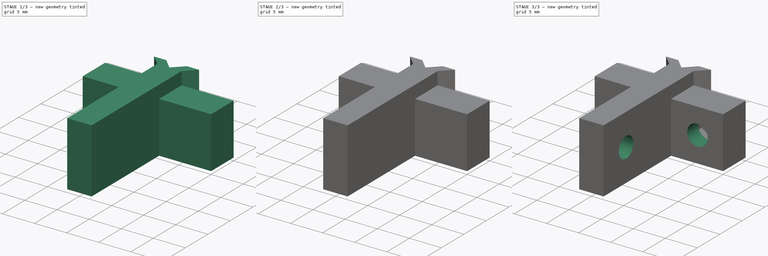
[diagram: build sequence overview — one tinted view per stage of 3, left to right]
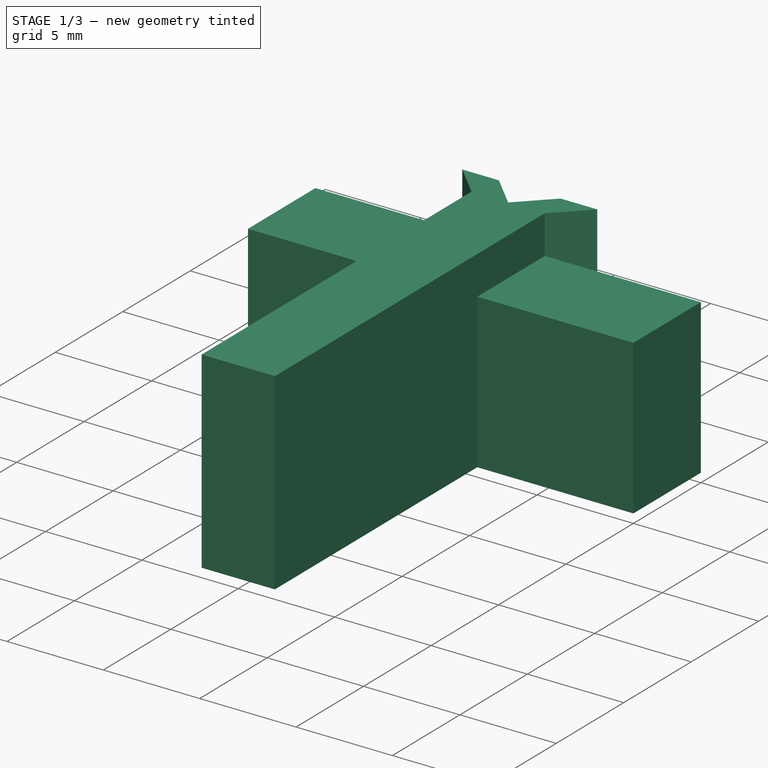
[diagram: stage 1 of 3 — iso view after this stage's code; geometry added in this stage tinted green]
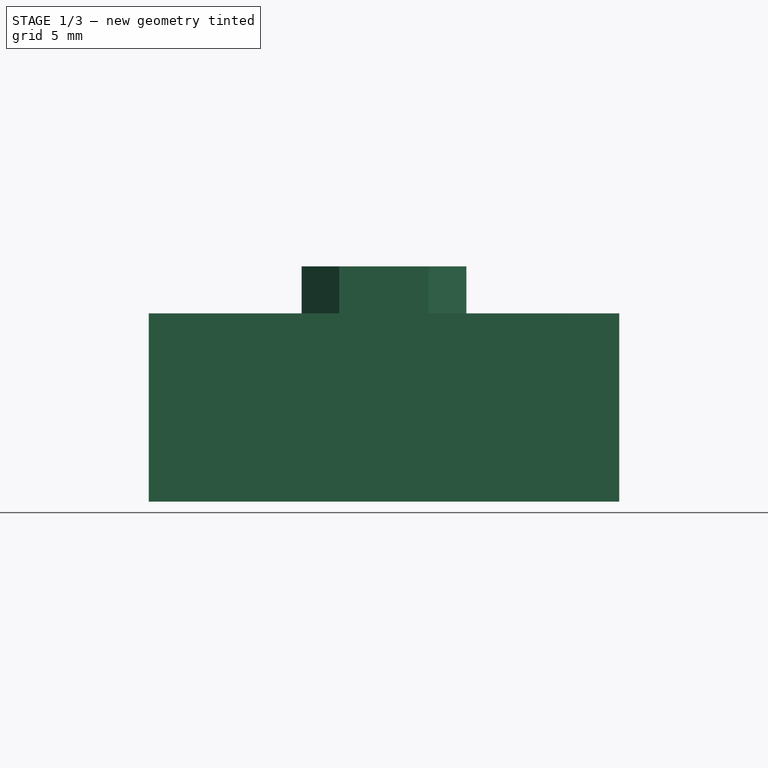
[diagram: stage 1 of 3 — front view after this stage's code; geometry added in this stage tinted green]
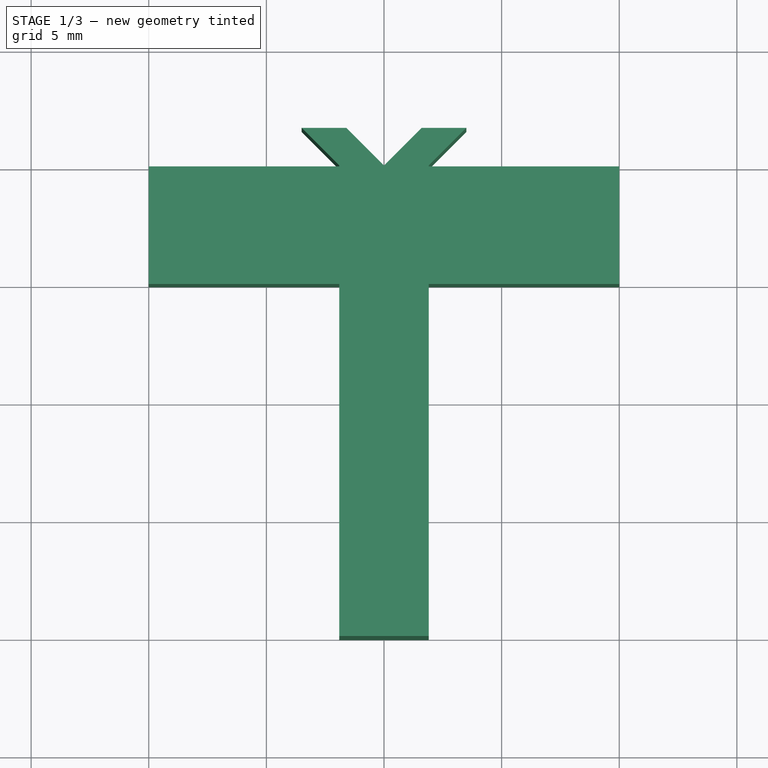
[diagram: stage 1 of 3 — top view after this stage's code; geometry added in this stage tinted green]
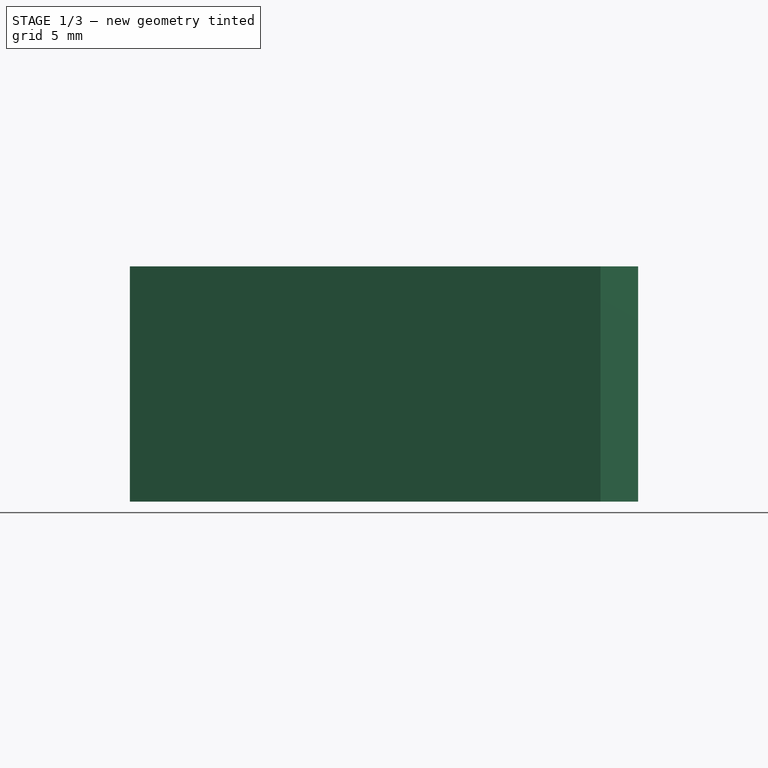
[diagram: stage 1 of 3 — right view after this stage's code; geometry added in this stage tinted green]
FCSTD DOCUMENT  (FreeCAD 0.18R15441 (Git))
Label: BackClip
License: All rights reserved
LicenseURL: http://en.wikipedia.org/wiki/All_rights_reserved
objects: Sketcher::SketchObject×5, PartDesign::Pocket×3, PartDesign::Pad×2, PartDesign::Body×1, App::Part×1
note: 16 computed .brp shape members not serialized (recipe doc carries the construction recipe); baked Part::Feature solids carry a one-line shape summary decoded from their .brp

FEATURE [Sketcher::SketchObject] Sketch001  label="BaseSketch"
  MapMode = 5
  Support = -> [XY_Plane001]
  sketch-geometry (9):
    g0: LineSegment StartX=-1.9 StartY=0 StartZ=0 EndX=-3.5 EndY=1.6 EndZ=0
    g1: LineSegment StartX=-3.5 StartY=1.6 StartZ=0 EndX=-1.6 EndY=1.6 EndZ=0
    g2: LineSegment StartX=-1.6 StartY=1.6 StartZ=0 EndX=0 EndY=2e-16 EndZ=0
    g3: LineSegment StartX=0 StartY=2e-16 StartZ=0 EndX=1.6 EndY=1.6 EndZ=0
    g4: LineSegment StartX=1.6 StartY=1.6 StartZ=0 EndX=3.5 EndY=1.6 EndZ=0
    g5: LineSegment StartX=3.5 StartY=1.6 StartZ=0 EndX=1.9 EndY=2e-16 EndZ=0
    g6: LineSegment StartX=-1.9 StartY=0 StartZ=0 EndX=-1.9 EndY=-20 EndZ=0
    g7: LineSegment StartX=-1.9 StartY=-20 StartZ=0 EndX=1.9 EndY=-20 EndZ=0
    g8: LineSegment StartX=1.9 StartY=-20 StartZ=0 EndX=1.9 EndY=0 EndZ=0
  constraints (24):
    c: PointOnObject(g0,g-1)
    c: Coincident(g1,g0)
    c: Horizontal(g1)
    c: Coincident(g2,g1)
    c: Coincident(g2,g-1)
    c: Coincident(g3,g2)
    c: Coincident(g4,g3)
    c: Horizontal(g4)
    c: Coincident(g5,g4)
    c: PointOnObject(g5,g-1)
    c: Coincident(g6,g0)
    c: Vertical(g6)
    c: Coincident(g7,g6)
    c: Coincident(g8,g7)
    c: Coincident(g8,g5)
    c: Vertical(g8)
    c: Symmetric(g6,g7,g-2)
    c: Parallel(g0,g2)
    c: Symmetric(g1,g3,g-2)
    c: Angle(g3,g2) = 1.5708
    c: Equal(g4,g1)
    c: DistanceY(g-1,g0) = 1.6
    c: Distance(g6) = 20
    c: Distance(g7) = 3.8
FEATURE [PartDesign::Pad] Pad  label="BasePad"
  Length = 10
  Length2 = 100
  Profile = -> Sketch001
  Type = 0
FEATURE [Sketcher::SketchObject] Sketch  label="LipsSketch"
  MapMode = 5
  Placement = pos=(0,0,0) rot=(1,0,0;1.5708rad)
  Support = -> [XZ_Plane001]
  sketch-geometry (4):
    g0: LineSegment StartX=-10 StartY=0 StartZ=0 EndX=10 EndY=0 EndZ=0
    g1: LineSegment StartX=10 StartY=0 StartZ=0 EndX=10 EndY=8 EndZ=0
    g2: LineSegment StartX=10 StartY=8 StartZ=0 EndX=-10 EndY=8 EndZ=0
    g3: LineSegment StartX=-10 StartY=8 StartZ=0 EndX=-10 EndY=0 EndZ=0
  constraints (11):
    c: Coincident(g0,g1)
    c: Coincident(g1,g2)
    c: Coincident(g2,g3)
    c: Coincident(g3,g0)
    c: Horizontal(g2)
    c: Vertical(g1)
    c: Vertical(g3)
    c: PointOnObject(g0,g-1)
    c: Symmetric(g0,g0,g-2)
    c: Distance(g0) = 20
    c: Distance(g3) = 8
FEATURE [PartDesign::Pad] Pad001  label="LipsPad"
  BaseFeature = -> Pad
  Length = 5
  Length2 = 100
  Profile = -> Sketch
  Type = 0
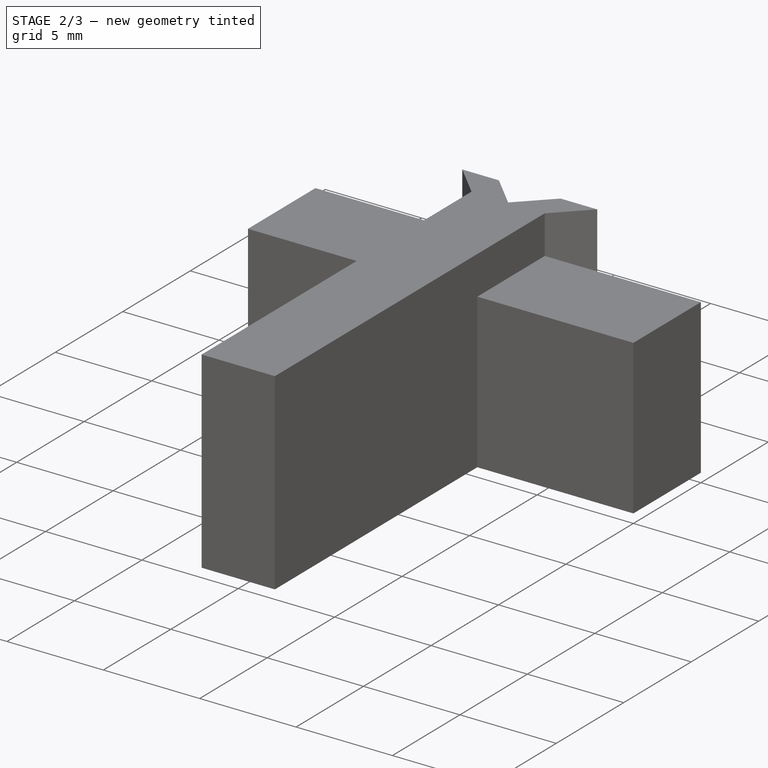
[diagram: stage 2 of 3 — iso view after this stage's code; geometry added in this stage tinted green]
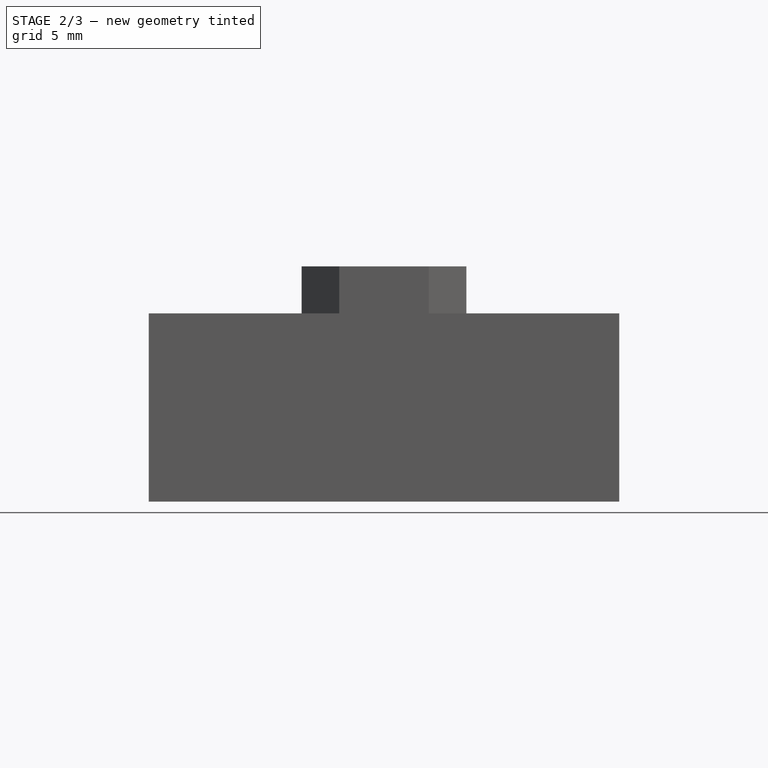
[diagram: stage 2 of 3 — front view after this stage's code; geometry added in this stage tinted green]
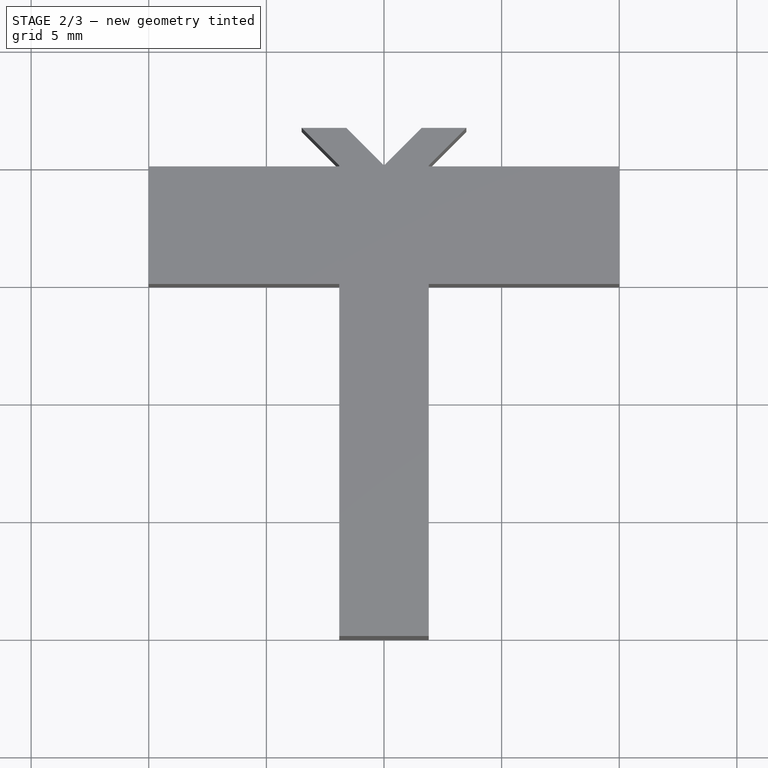
[diagram: stage 2 of 3 — top view after this stage's code; geometry added in this stage tinted green]
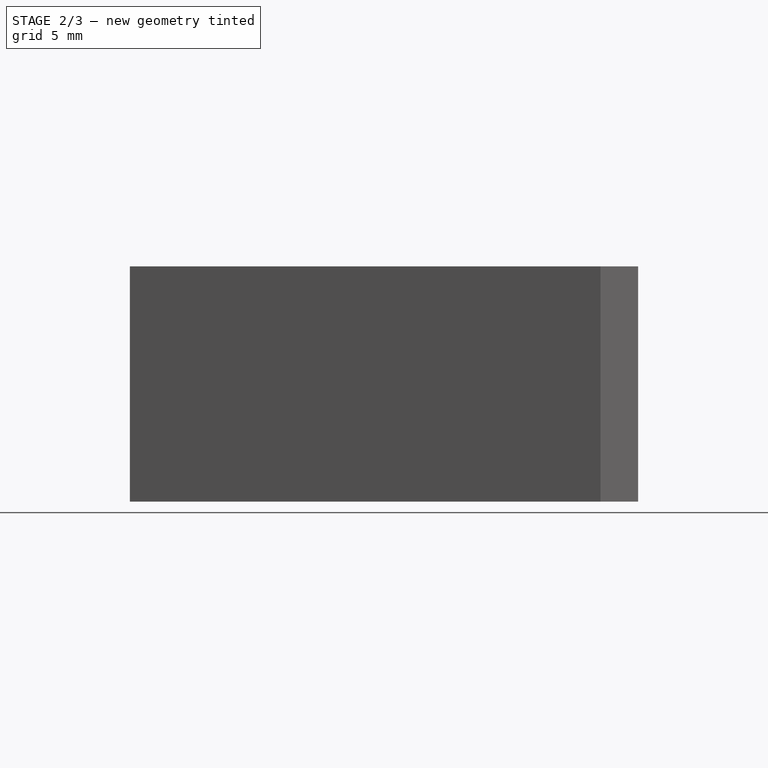
[diagram: stage 2 of 3 — right view after this stage's code; geometry added in this stage tinted green]
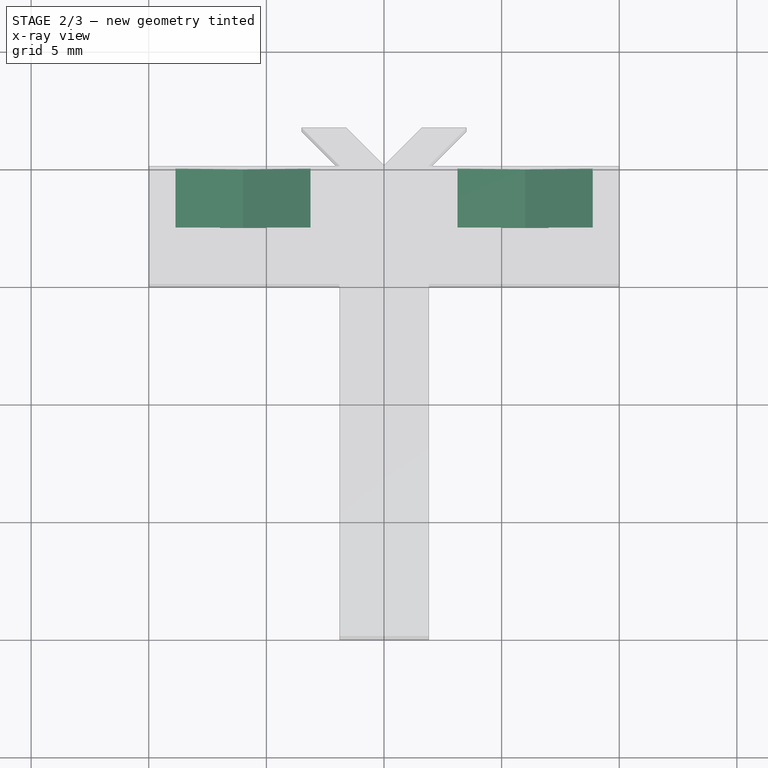
[diagram: stage 2 of 3 — x-ray composite at the top view; earlier geometry ghosted, this stage's added geometry solid]
FEATURE [Sketcher::SketchObject] Sketch002  label="NutsSketch"
  ExternalGeometry = -> [Sketch]
  MapMode = 5
  Placement = pos=(0,0,0) rot=(1,0,0;1.5708rad)
  Support = -> [XZ_Plane001]
  sketch-geometry (18):
    g0: LineSegment StartX=-3.125 StartY=2.34012 StartZ=0 EndX=-3.125 EndY=5.65988 EndZ=0
    g1: LineSegment StartX=-3.125 StartY=5.65988 StartZ=0 EndX=-6 EndY=7.31976 EndZ=0
    g2: LineSegment StartX=-6 StartY=7.31976 StartZ=0 EndX=-8.875 EndY=5.65988 EndZ=0
    g3: LineSegment StartX=-8.875 StartY=5.65988 StartZ=0 EndX=-8.875 EndY=2.34012 EndZ=0
    g4: LineSegment StartX=-8.875 StartY=2.34012 StartZ=0 EndX=-6 EndY=0.680236 EndZ=0
    g5: LineSegment StartX=-6 StartY=0.680236 StartZ=0 EndX=-3.125 EndY=2.34012 EndZ=0
    g6: Circle [constr] CenterX=-6 CenterY=4 CenterZ=0 NormalX=0 NormalY=0 NormalZ=1 AngleXU=0 Radius=3.31976
    g7: LineSegment StartX=3.125 StartY=2.34012 StartZ=0 EndX=6 EndY=0.680236 EndZ=0
    g8: LineSegment StartX=6 StartY=0.680236 StartZ=0 EndX=8.875 EndY=2.34012 EndZ=0
    g9: LineSegment StartX=8.875 StartY=2.34012 StartZ=0 EndX=8.875 EndY=5.65988 EndZ=0
    g10: LineSegment StartX=8.875 StartY=5.65988 StartZ=0 EndX=6 EndY=7.31976 EndZ=0
    g11: LineSegment StartX=6 StartY=7.31976 StartZ=0 EndX=3.125 EndY=5.65988 EndZ=0
    g12: LineSegment StartX=3.125 StartY=5.65988 StartZ=0 EndX=3.125 EndY=2.34012 EndZ=0
    g13: Circle [constr] CenterX=6 CenterY=4 CenterZ=0 NormalX=0 NormalY=0 NormalZ=1 AngleXU=0 Radius=3.31976
    g14: LineSegment [constr] StartX=-10 StartY=8 StartZ=0 EndX=-6 EndY=4 EndZ=0
    g15: LineSegment [constr] StartX=-6 StartY=4 StartZ=0 EndX=-10 EndY=9e-16 EndZ=0
    g16: LineSegment [constr] StartX=6 StartY=4 StartZ=0 EndX=10 EndY=8 EndZ=0
    g17: LineSegment [constr] StartX=6 StartY=4 StartZ=0 EndX=10 EndY=0 EndZ=0
  constraints (42):
    c: Coincident(g0,g1)
    c: Coincident(g1,g2)
    c: Coincident(g2,g3)
    c: Coincident(g3,g4)
    c: Coincident(g4,g5)
    c: Coincident(g5,g0)
    c: Equal(g0, g1-g5) x5
    c: PointOnObject(g0,g6)
    c: PointOnObject(g1,g6)
    c: PointOnObject(g2,g6)
    c: PointOnObject(g3,g6)
    c: PointOnObject(g4,g6)
    c: PointOnObject(g5,g6)
    c: Coincident(g7,g8)
    c: Coincident(g8,g9)
    c: Coincident(g9,g10)
    c: Coincident(g10,g11)
    c: Coincident(g11,g12)
    c: Coincident(g12,g7)
    c: Equal(g7, g8-g12) x5
    c: PointOnObject(g7,g13)
    c: PointOnObject(g8,g13)
    c: PointOnObject(g9,g13)
    c: PointOnObject(g10,g13)
    c: PointOnObject(g11,g13)
    c: PointOnObject(g12,g13)
    c: Coincident(g14,g-3)
    c: Coincident(g14,g6)
    c: Coincident(g15,g6)
    c: Coincident(g15,g-3)
    c: Coincident(g16,g13)
    c: Coincident(g16,g-4)
    c: Coincident(g17,g13)
    c: Coincident(g17,g-4)
    c: Equal(g14,g15)
    c: Equal(g15,g17)
    c: Equal(g17,g16)
    c: Vertical(g0)
    c: Vertical(g12)
    c: Equal(g0,g12)
    c: Distance(g2,g0) = 5.75
    c: Distance(g6,g-3) = 4
FEATURE [PartDesign::Pocket] Pocket  label="NutsPocket"
  BaseFeature = -> Pad001
  Length = 2.5
  Length2 = 100
  Profile = -> Sketch002
  Reversed = true
  Type = 0
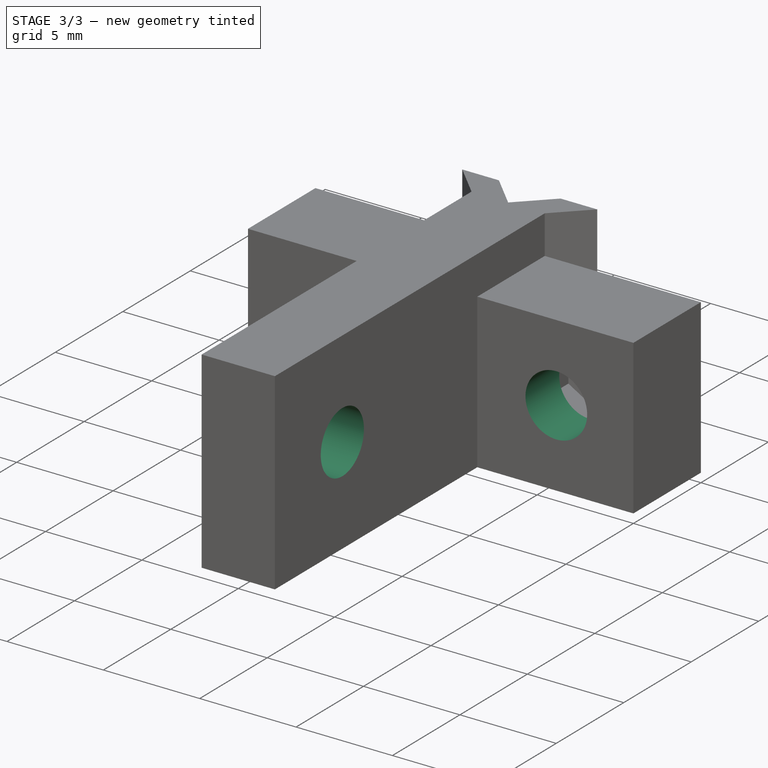
[diagram: stage 3 of 3 — iso view after this stage's code; geometry added in this stage tinted green]
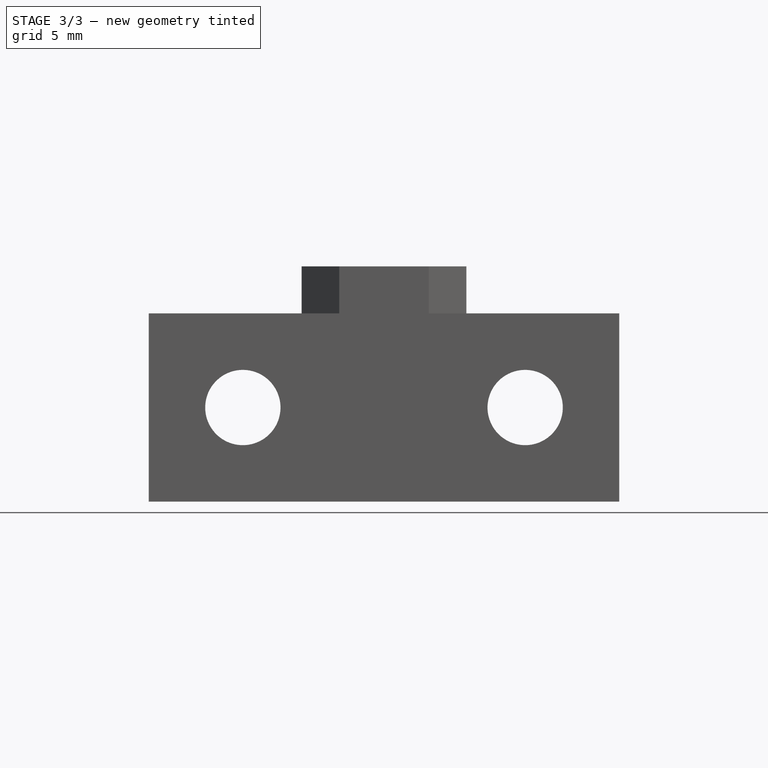
[diagram: stage 3 of 3 — front view after this stage's code; geometry added in this stage tinted green]
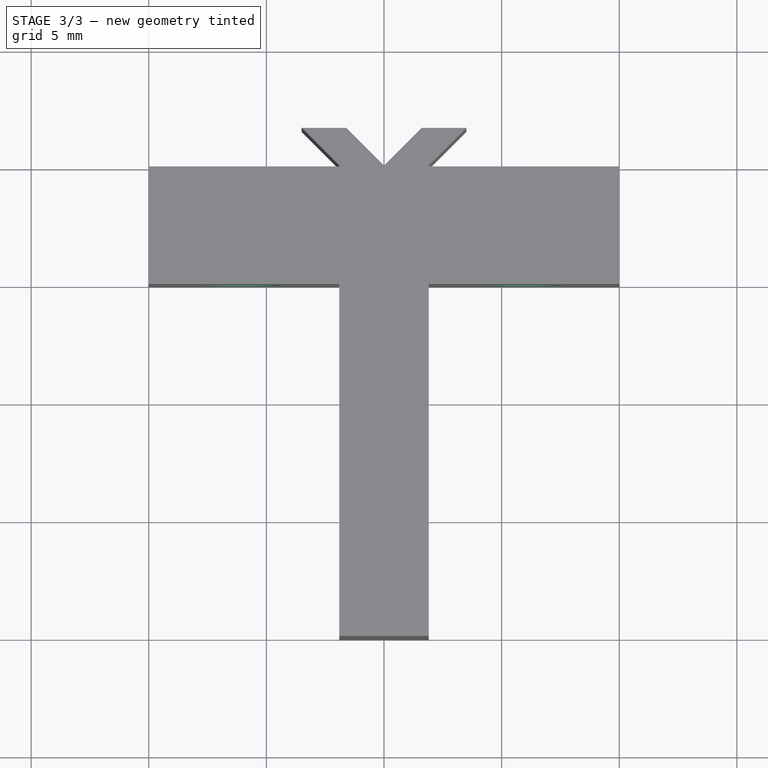
[diagram: stage 3 of 3 — top view after this stage's code; geometry added in this stage tinted green]
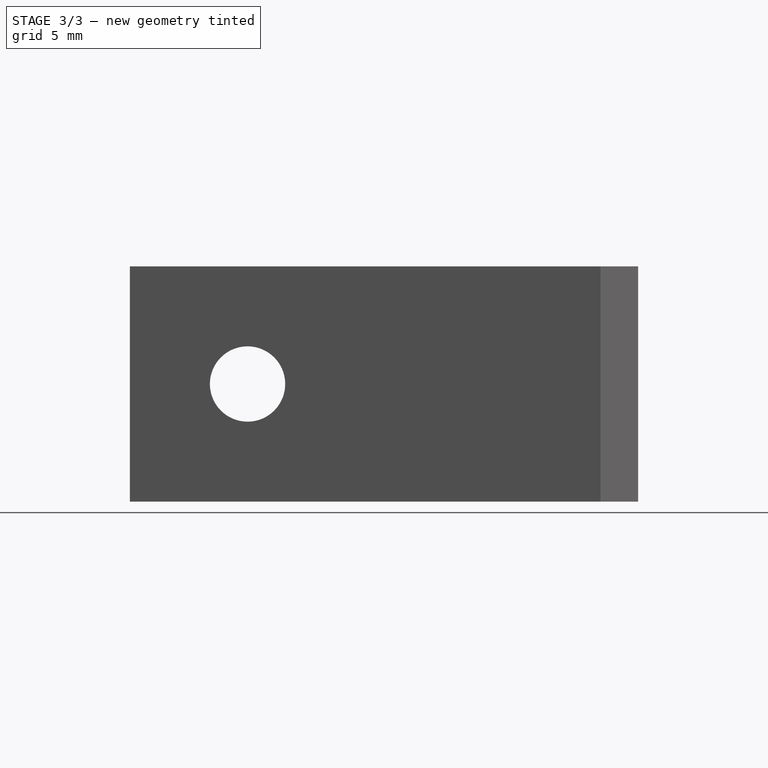
[diagram: stage 3 of 3 — right view after this stage's code; geometry added in this stage tinted green]
FEATURE [Sketcher::SketchObject] Sketch003  label="ScrewHolesSketch"
  ExternalGeometry = -> [Sketch]
  MapMode = 5
  Placement = pos=(0,0,0) rot=(1,0,0;1.5708rad)
  Support = -> [XZ_Plane001]
  sketch-geometry (4):
    g0: Circle CenterX=-6 CenterY=4 CenterZ=0 NormalX=0 NormalY=0 NormalZ=1 AngleXU=0 Radius=1.6
    g1: LineSegment [constr] StartX=-10 StartY=8 StartZ=0 EndX=-6 EndY=4 EndZ=0
    g2: LineSegment [constr] StartX=-6 StartY=4 StartZ=0 EndX=-10 EndY=0 EndZ=0
    g3: Circle CenterX=6 CenterY=4 CenterZ=0 NormalX=0 NormalY=0 NormalZ=1 AngleXU=0 Radius=1.6
  constraints (9):
    c: Coincident(g1,g-3)
    c: Coincident(g1,g0)
    c: Coincident(g2,g0)
    c: Coincident(g2,g-3)
    c: Equal(g2,g1)
    c: Equal(g0,g3)
    c: Symmetric(g0,g3,g-2)
    c: Radius(g0) = 1.6
    c: Distance(g0,g-3) = 4
FEATURE [PartDesign::Pocket] Pocket001  label="ScewHolesPocket"
  BaseFeature = -> Pocket
  Length = 5
  Length2 = 100
  Profile = -> Sketch003
  Reversed = true
  Type = 1
FEATURE [Sketcher::SketchObject] Sketch004  label="TurbineClipSketch"
  MapMode = 5
  Placement = pos=(0,0,0) rot=(0.57735,0.57735,0.57735;2.0944rad)
  Support = -> [YZ_Plane001]
  sketch-geometry (1):
    g0: Circle CenterX=-15 CenterY=5 CenterZ=0 NormalX=0 NormalY=0 NormalZ=1 AngleXU=0 Radius=1.6
  constraints (3):
    c: DistanceY(g-1,g0) = 5
    c: DistanceX(g-2,g0) = -15
    c: Radius(g0) = 1.6
FEATURE [PartDesign::Pocket] Pocket002  label="TurbineClipPocket"
  BaseFeature = -> Pocket001
  Length = 5
  Length2 = 100
  Midplane = true
  Profile = -> Sketch004
  Type = 1
FEATURE [PartDesign::Body] Body  label="BackClipBody"
  Group = -> [Sketch001,Pad,Sketch,Pad001,Sketch002,Pocket,Sketch003,Pocket001,Sketch004,Pocket002]
  Origin = -> Origin001
  Tip = -> Pocket002
FEATURE [App::Part] Part  label="BackClipPart"
  Group = -> [Body]
  License = CC BY 3.0
  LicenseURL = http://creativecommons.org/licenses/by/3.0/
  Origin = -> Origin
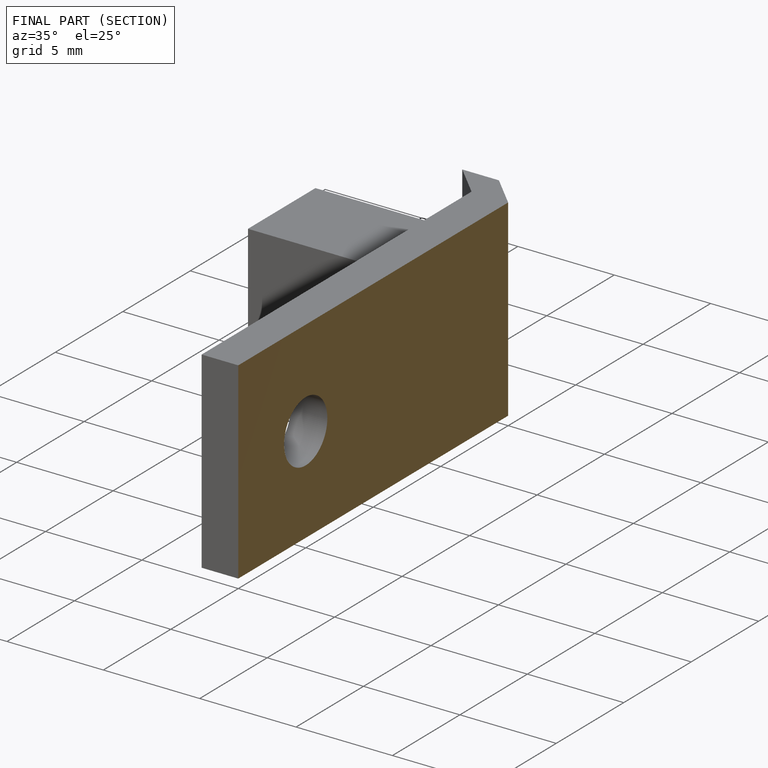
[diagram: finished part — half-section view (interior)]
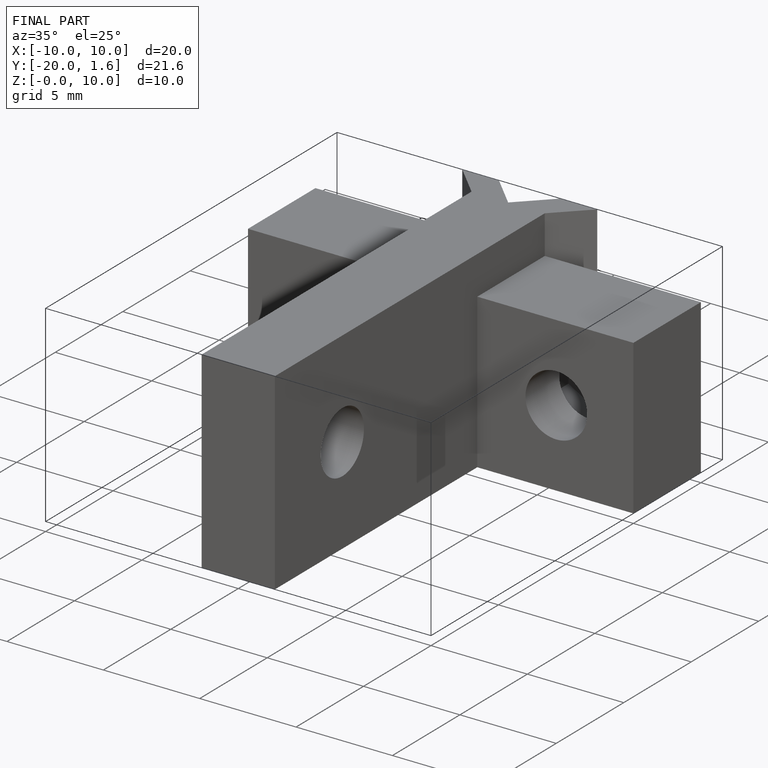
[diagram: finished part — iso view with bounding-box wireframe]
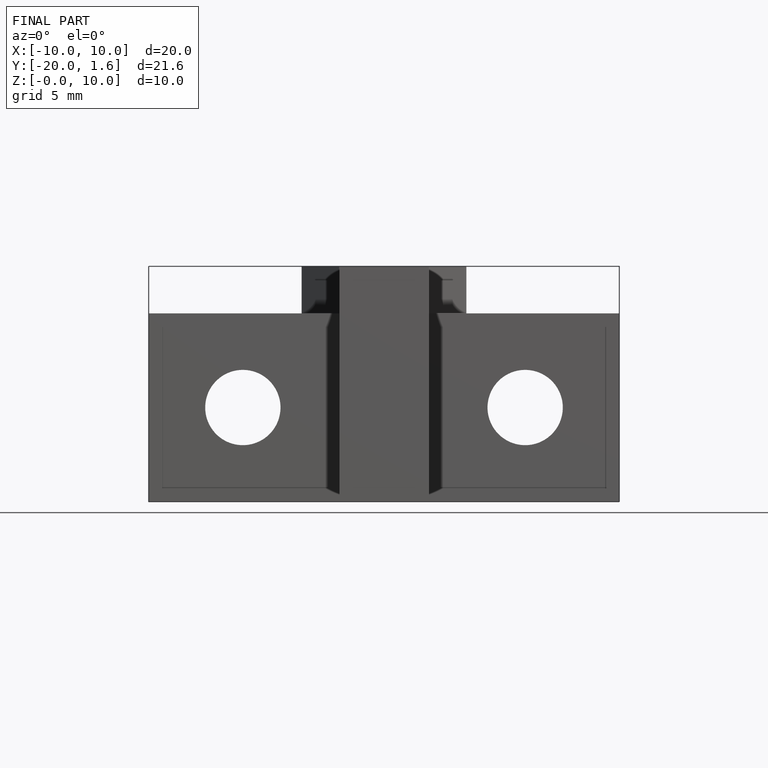
[diagram: finished part — front view with bounding-box wireframe]
